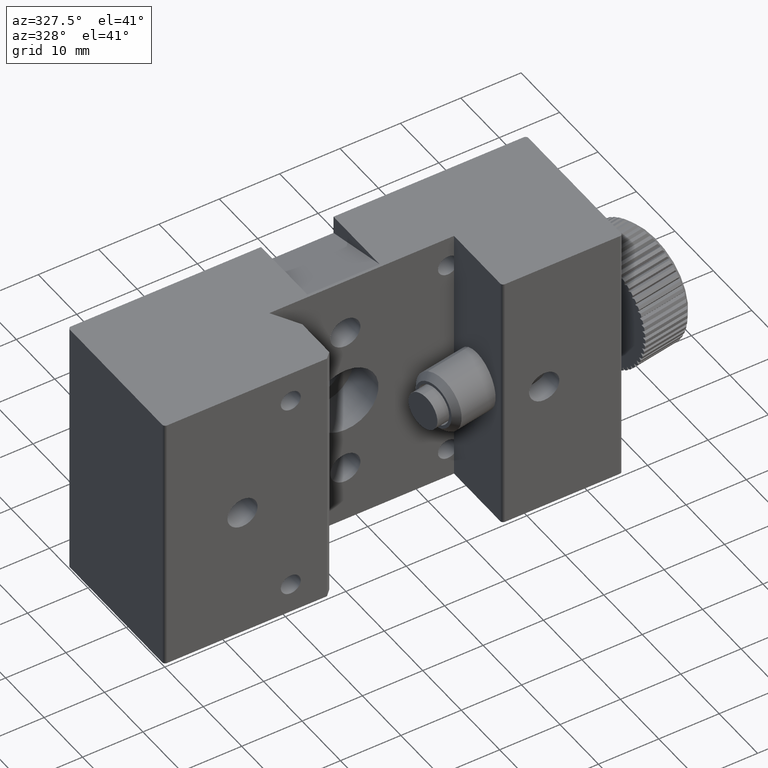
[diagram: clean part render]
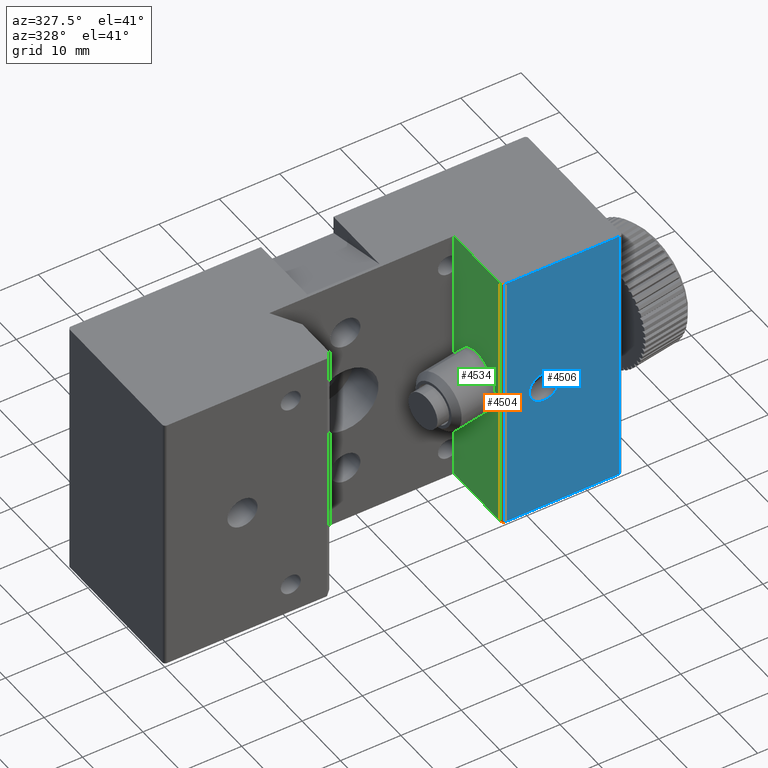
[diagram: same view with three faces highlighted in distinct colors, each labeled with its STEP entity id]
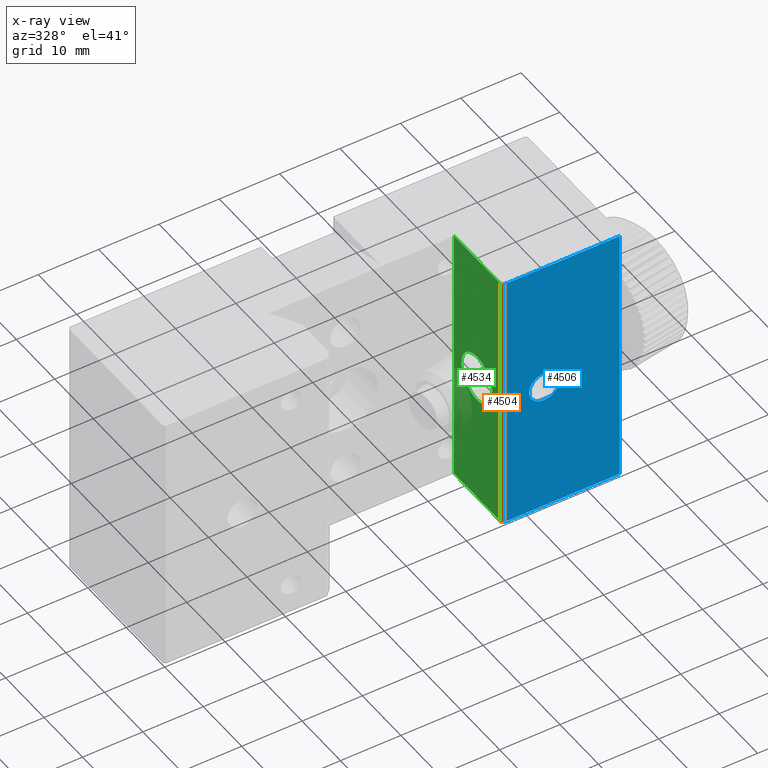
[diagram: x-ray of the same camera — body ghosted, the three highlighted faces saturated]
A machine part, auxiliary view with three faces highlighted in distinct colors.
The next image is the same camera in x-ray (body ghosted, the three faces saturated) — at least one of them is partly hidden behind the body in this view.
Their STEP definitions:

[orange] entity #4504 — the highlighted cylindrical surface (edge-blend (fillet) strip) has radius 0.5 mm, axis along (0, 0, 1).
#41 = FACE_OUTER_BOUND ( 'NONE', #4991, .T. ) ;
#45 = CYLINDRICAL_SURFACE ( 'NONE', #7096, 0.4999999999999987200 ) ;
#555 = DIRECTION ( 'NONE',  ( 0.0000000000000000000, 0.0000000000000000000, 1.000000000000000000 ) ) ;
#557 = CARTESIAN_POINT ( 'NONE',  ( -4.223264835549443300, -10.44205040425162800, -22.00000000000000000 ) ) ;
#558 = DIRECTION ( 'NONE',  ( 0.0000000000000000000, 0.0000000000000000000, 1.000000000000000000 ) ) ;
#559 = DIRECTION ( 'NONE',  ( 1.000000000000000000, 0.0000000000000000000, 0.0000000000000000000 ) ) ;
#1449 = EDGE_CURVE ( 'NONE', #5059, #5122, #1967, .T. ) ;
#1460 = EDGE_CURVE ( 'NONE', #5119, #5059, #1985, .T. ) ;
#1463 = EDGE_CURVE ( 'NONE', #5060, #5122, #1981, .T. ) ;
#1465 = EDGE_CURVE ( 'NONE', #5119, #5060, #1993, .T. ) ;
#1493 = CARTESIAN_POINT ( 'NONE',  ( -4.223264835549443300, -10.44205040425162800, 22.00000000000000000 ) ) ;
#1494 = DIRECTION ( 'NONE',  ( 0.0000000000000000000, 0.0000000000000000000, 1.000000000000000000 ) ) ;
#1495 = DIRECTION ( 'NONE',  ( 1.000000000000000000, 0.0000000000000000000, 0.0000000000000000000 ) ) ;
#1516 = CARTESIAN_POINT ( 'NONE',  ( -4.723264835549439800, -10.44205040425162800, -22.00000000000000000 ) ) ;
#1517 = DIRECTION ( 'NONE',  ( 0.0000000000000000000, 0.0000000000000000000, 1.000000000000000000 ) ) ;
#1518 = CARTESIAN_POINT ( 'NONE',  ( -4.223264835549443300, -10.94205040425162800, -22.00000000000000000 ) ) ;
#1967 = CIRCLE ( 'NONE', #3378, 0.4999999999999987200 ) ;
#1981 = LINE ( 'NONE', #1518, #1991 ) ;
#1985 = LINE ( 'NONE', #1516, #1988 ) ;
#1988 = VECTOR ( 'NONE', #1517, 1000.000000000000000 ) ;
#1991 = VECTOR ( 'NONE', #555, 1000.000000000000000 ) ;
#1993 = CIRCLE ( 'NONE', #3382, 0.4999999999999987200 ) ;
#2957 = CARTESIAN_POINT ( 'NONE',  ( -4.723264835549439800, -10.44205040425162800, 22.00000000000000000 ) ) ;
#2958 = CARTESIAN_POINT ( 'NONE',  ( -4.223264835549443300, -10.94205040425162800, -22.00000000000000000 ) ) ;
#2964 = CARTESIAN_POINT ( 'NONE',  ( -4.723264835549439800, -10.44205040425162800, -22.00000000000000000 ) ) ;
#2969 = CARTESIAN_POINT ( 'NONE',  ( -4.223264835549443300, -10.94205040425162800, 22.00000000000000000 ) ) ;
#3378 = AXIS2_PLACEMENT_3D ( 'NONE', #1493, #1494, #1495 ) ;
#3382 = AXIS2_PLACEMENT_3D ( 'NONE', #557, #558, #559 ) ;
#4504 = ADVANCED_FACE ( 'NONE', ( #41 ), #45, .T. ) ;
#4836 = DIRECTION ( 'NONE',  ( 1.000000000000000000, 0.0000000000000000000, 0.0000000000000000000 ) ) ;
#4843 = DIRECTION ( 'NONE',  ( 0.0000000000000000000, 0.0000000000000000000, 1.000000000000000000 ) ) ;
#4844 = CARTESIAN_POINT ( 'NONE',  ( -4.223264835549443300, -10.44205040425162800, -22.00000000000000000 ) ) ;
#4991 = EDGE_LOOP ( 'NONE', ( #5295, #5297, #5299, #5301 ) ) ;
#5059 = VERTEX_POINT ( 'NONE', #2957 ) ;
#5060 = VERTEX_POINT ( 'NONE', #2958 ) ;
#5119 = VERTEX_POINT ( 'NONE', #2964 ) ;
#5122 = VERTEX_POINT ( 'NONE', #2969 ) ;
#5295 = ORIENTED_EDGE ( 'NONE', *, *, #1449, .F. ) ;
#5297 = ORIENTED_EDGE ( 'NONE', *, *, #1460, .F. ) ;
#5299 = ORIENTED_EDGE ( 'NONE', *, *, #1465, .T. ) ;
#5301 = ORIENTED_EDGE ( 'NONE', *, *, #1463, .T. ) ;
#7096 = AXIS2_PLACEMENT_3D ( 'NONE', #4844, #4843, #4836 ) ;

[blue] entity #4506 — the highlighted planar face has unit normal (0, 1, -0).
#44 = FACE_BOUND ( 'NONE', #4984, .T. ) ;
#49 = FACE_OUTER_BOUND ( 'NONE', #4980, .T. ) ;
#555 = DIRECTION ( 'NONE',  ( 0.0000000000000000000, 0.0000000000000000000, 1.000000000000000000 ) ) ;
#579 = VERTEX_POINT ( 'NONE', #1314 ) ;
#1314 = CARTESIAN_POINT ( 'NONE',  ( 14.77673516445055700, -10.94205040425163000, 22.00000000000000000 ) ) ;
#1457 = EDGE_CURVE ( 'NONE', #5057, #579, #1980, .T. ) ;
#1458 = EDGE_CURVE ( 'NONE', #5057, #5060, #1978, .T. ) ;
#1459 = EDGE_CURVE ( 'NONE', #579, #5122, #1983, .T. ) ;
#1461 = EDGE_CURVE ( 'NONE', #4308, #4308, #1987, .T. ) ;
#1463 = EDGE_CURVE ( 'NONE', #5060, #5122, #1981, .T. ) ;
#1504 = DIRECTION ( 'NONE',  ( 0.0000000000000000000, 0.0000000000000000000, 1.000000000000000000 ) ) ;
#1508 = CARTESIAN_POINT ( 'NONE',  ( 14.77673516445055700, -10.94205040425163000, -22.00000000000000000 ) ) ;
#1509 = CARTESIAN_POINT ( 'NONE',  ( 14.77673516445055700, -10.94205040425163000, -22.00000000000000000 ) ) ;
#1513 = DIRECTION ( 'NONE',  ( -1.000000000000000000, 0.0000000000000000000, 0.0000000000000000000 ) ) ;
#1514 = CARTESIAN_POINT ( 'NONE',  ( 14.77673516445055700, -10.94205040425163000, 22.00000000000000000 ) ) ;
#1515 = DIRECTION ( 'NONE',  ( -1.000000000000000000, 0.0000000000000000000, 0.0000000000000000000 ) ) ;
#1518 = CARTESIAN_POINT ( 'NONE',  ( -4.223264835549443300, -10.94205040425162800, -22.00000000000000000 ) ) ;
#1520 = CARTESIAN_POINT ( 'NONE',  ( 2.276735164450559300, -10.94205040425163100, 0.0000000000000000000 ) ) ;
#1521 = DIRECTION ( 'NONE',  ( -0.0000000000000000000, 1.000000000000000000, -0.0000000000000000000 ) ) ;
#1522 = DIRECTION ( 'NONE',  ( 0.0000000000000000000, 0.0000000000000000000, 1.000000000000000000 ) ) ;
#1978 = LINE ( 'NONE', #1509, #1984 ) ;
#1980 = LINE ( 'NONE', #1508, #1982 ) ;
#1981 = LINE ( 'NONE', #1518, #1991 ) ;
#1982 = VECTOR ( 'NONE', #1504, 1000.000000000000000 ) ;
#1983 = LINE ( 'NONE', #1514, #1986 ) ;
#1984 = VECTOR ( 'NONE', #1513, 1000.000000000000000 ) ;
#1986 = VECTOR ( 'NONE', #1515, 1000.000000000000000 ) ;
#1987 = CIRCLE ( 'NONE', #3381, 2.499999999999995100 ) ;
#1991 = VECTOR ( 'NONE', #555, 1000.000000000000000 ) ;
#2955 = CARTESIAN_POINT ( 'NONE',  ( 14.77673516445055700, -10.94205040425163000, -22.00000000000000000 ) ) ;
#2958 = CARTESIAN_POINT ( 'NONE',  ( -4.223264835549443300, -10.94205040425162800, -22.00000000000000000 ) ) ;
#2969 = CARTESIAN_POINT ( 'NONE',  ( -4.223264835549443300, -10.94205040425162800, 22.00000000000000000 ) ) ;
#3381 = AXIS2_PLACEMENT_3D ( 'NONE', #1520, #1521, #1522 ) ;
#4308 = VERTEX_POINT ( 'NONE', #5354 ) ;
#4506 = ADVANCED_FACE ( 'NONE', ( #44, #49 ), #4849, .F. ) ;
#4847 = CARTESIAN_POINT ( 'NONE',  ( 14.77673516445055700, -10.94205040425163000, -22.00000000000000000 ) ) ;
#4849 = PLANE ( 'NONE',  #7098 ) ;
#4851 = DIRECTION ( 'NONE',  ( 0.0000000000000000000, 1.000000000000000000, -0.0000000000000000000 ) ) ;
#4852 = DIRECTION ( 'NONE',  ( 0.0000000000000000000, 0.0000000000000000000, 1.000000000000000000 ) ) ;
#4980 = EDGE_LOOP ( 'NONE', ( #5307, #5278, #5277, #5276 ) ) ;
#4984 = EDGE_LOOP ( 'NONE', ( #5308 ) ) ;
#5057 = VERTEX_POINT ( 'NONE', #2955 ) ;
#5060 = VERTEX_POINT ( 'NONE', #2958 ) ;
#5122 = VERTEX_POINT ( 'NONE', #2969 ) ;
#5276 = ORIENTED_EDGE ( 'NONE', *, *, #1457, .T. ) ;
#5277 = ORIENTED_EDGE ( 'NONE', *, *, #1458, .F. ) ;
#5278 = ORIENTED_EDGE ( 'NONE', *, *, #1463, .F. ) ;
#5307 = ORIENTED_EDGE ( 'NONE', *, *, #1459, .T. ) ;
#5308 = ORIENTED_EDGE ( 'NONE', *, *, #1461, .T. ) ;
#5354 = CARTESIAN_POINT ( 'NONE',  ( 2.276735164450559300, -10.94205040425163100, 2.499999999999995100 ) ) ;
#7098 = AXIS2_PLACEMENT_3D ( 'NONE', #4847, #4851, #4852 ) ;

[green] entity #4534 — the highlighted planar face has unit normal (1, 0, 0).
#81 = FACE_BOUND ( 'NONE', #4977, .T. ) ;
#88 = FACE_OUTER_BOUND ( 'NONE', #4976, .T. ) ;
#458 = CARTESIAN_POINT ( 'NONE',  ( -4.723264835549439800, -0.4180384341784961200, 7.937499999999987600 ) ) ;
#463 = CARTESIAN_POINT ( 'NONE',  ( -4.723264835549439800, 1.557949595748372000, -22.00000000000000000 ) ) ;
#466 = CARTESIAN_POINT ( 'NONE',  ( -4.723264835549439800, 1.557949595748372000, -22.00000000000000000 ) ) ;
#467 = CARTESIAN_POINT ( 'NONE',  ( -4.723264835549439800, -0.4180384341784960100, 0.0000000000000000000 ) ) ;
#468 = CARTESIAN_POINT ( 'NONE',  ( -4.723264835549439800, -8.477987166021588200, 7.937499999999987600 ) ) ;
#469 = CARTESIAN_POINT ( 'NONE',  ( -4.723264835549439800, -8.477987166021590000, 4.860316984116052200E-016 ) ) ;
#470 = CARTESIAN_POINT ( 'NONE',  ( -4.723264835549439800, -8.477987166021591700, -7.937499999999987600 ) ) ;
#471 = CARTESIAN_POINT ( 'NONE',  ( -4.723264835549439800, -0.4180384341784961200, -7.937499999999987600 ) ) ;
#472 = CARTESIAN_POINT ( 'NONE',  ( -4.723264835549439800, -0.4180384341784960100, 0.0000000000000000000 ) ) ;
#473 = DIRECTION ( 'NONE',  ( 0.0000000000000000000, 0.0000000000000000000, 1.000000000000000000 ) ) ;
#474 = DIRECTION ( 'NONE',  ( 0.0000000000000000000, 0.0000000000000000000, 1.000000000000000000 ) ) ;
#475 = CARTESIAN_POINT ( 'NONE',  ( -4.723264835549439800, 1.557949595748372000, -22.00000000000000000 ) ) ;
#476 = DIRECTION ( 'NONE',  ( 0.0000000000000000000, 0.0000000000000000000, 1.000000000000000000 ) ) ;
#477 = CARTESIAN_POINT ( 'NONE',  ( -4.723264835549439800, 1.557949595748372000, -22.00000000000000000 ) ) ;
#478 = DIRECTION ( 'NONE',  ( 0.0000000000000000000, 0.0000000000000000000, 1.000000000000000000 ) ) ;
#479 = CARTESIAN_POINT ( 'NONE',  ( -4.723264835549439800, 1.557949595748372000, -22.00000000000000000 ) ) ;
#480 = DIRECTION ( 'NONE',  ( 0.0000000000000000000, 0.0000000000000000000, 1.000000000000000000 ) ) ;
#1052 = ORIENTED_EDGE ( 'NONE', *, *, #1373, .T. ) ;
#1053 = ORIENTED_EDGE ( 'NONE', *, *, #1439, .T. ) ;
#1054 = ORIENTED_EDGE ( 'NONE', *, *, #1374, .F. ) ;
#1055 = ORIENTED_EDGE ( 'NONE', *, *, #1375, .F. ) ;
#1056 = ORIENTED_EDGE ( 'NONE', *, *, #1376, .F. ) ;
#1057 = ORIENTED_EDGE ( 'NONE', *, *, #1377, .F. ) ;
#1058 = ORIENTED_EDGE ( 'NONE', *, *, #1378, .F. ) ;
#1059 = ORIENTED_EDGE ( 'NONE', *, *, #1442, .F. ) ;
#1060 = ORIENTED_EDGE ( 'NONE', *, *, #1460, .T. ) ;
#1373 = EDGE_CURVE ( 'NONE', #4282, #4282, #2190, .T. ) ;
#1374 = EDGE_CURVE ( 'NONE', #5050, #5041, #2546, .T. ) ;
#1375 = EDGE_CURVE ( 'NONE', #5044, #5050, #2548, .T. ) ;
#1376 = EDGE_CURVE ( 'NONE', #5395, #5044, #2543, .T. ) ;
#1377 = EDGE_CURVE ( 'NONE', #5393, #5395, #2550, .T. ) ;
#1378 = EDGE_CURVE ( 'NONE', #5052, #5393, #2552, .T. ) ;
#1439 = EDGE_CURVE ( 'NONE', #5059, #5041, #1950, .T. ) ;
#1442 = EDGE_CURVE ( 'NONE', #5119, #5052, #1954, .T. ) ;
#1460 = EDGE_CURVE ( 'NONE', #5119, #5059, #1985, .T. ) ;
#1516 = CARTESIAN_POINT ( 'NONE',  ( -4.723264835549439800, -10.44205040425162800, -22.00000000000000000 ) ) ;
#1517 = DIRECTION ( 'NONE',  ( 0.0000000000000000000, 0.0000000000000000000, 1.000000000000000000 ) ) ;
#1577 = CARTESIAN_POINT ( 'NONE',  ( -4.723264835549439800, -10.44205040425162800, -22.00000000000000000 ) ) ;
#1582 = CARTESIAN_POINT ( 'NONE',  ( -4.723264835549439800, -10.44205040425162800, 22.00000000000000000 ) ) ;
#1583 = DIRECTION ( 'NONE',  ( 0.0000000000000000000, 1.000000000000000000, 0.0000000000000000000 ) ) ;
#1587 = DIRECTION ( 'NONE',  ( 0.0000000000000000000, 1.000000000000000000, 0.0000000000000000000 ) ) ;
#1950 = LINE ( 'NONE', #1582, #1953 ) ;
#1953 = VECTOR ( 'NONE', #1583, 1000.000000000000000 ) ;
#1954 = LINE ( 'NONE', #1577, #1959 ) ;
#1959 = VECTOR ( 'NONE', #1587, 1000.000000000000000 ) ;
#1985 = LINE ( 'NONE', #1516, #1988 ) ;
#1988 = VECTOR ( 'NONE', #1517, 1000.000000000000000 ) ;
#2190 =( BOUNDED_CURVE ( )  B_SPLINE_CURVE ( 3, ( #467, #458, #468, #469, #470, #471, #472 ),
 .UNSPECIFIED., .T., .T. ) 
 B_SPLINE_CURVE_WITH_KNOTS ( ( 4, 3, 4 ),
 ( 0.0000000000000000000, 3.141592653589793100, 6.283185307179586200 ),
 .UNSPECIFIED. ) 
 CURVE ( )  GEOMETRIC_REPRESENTATION_ITEM ( )  RATIONAL_B_SPLINE_CURVE ( ( 1.000000000000000000, 0.3333333333333333700, 0.3333333333333333700, 1.000000000000000000, 0.3333333333333333700, 0.3333333333333333700, 1.000000000000000000 ) ) 
 REPRESENTATION_ITEM ( '' )  );
#2543 = LINE ( 'NONE', #466, #2551 ) ;
#2545 = VECTOR ( 'NONE', #474, 1000.000000000000000 ) ;
#2546 = LINE ( 'NONE', #463, #2545 ) ;
#2547 = VECTOR ( 'NONE', #473, 1000.000000000000000 ) ;
#2548 = LINE ( 'NONE', #475, #2547 ) ;
#2550 = LINE ( 'NONE', #477, #2553 ) ;
#2551 = VECTOR ( 'NONE', #476, 1000.000000000000000 ) ;
#2552 = LINE ( 'NONE', #479, #2555 ) ;
#2553 = VECTOR ( 'NONE', #478, 1000.000000000000000 ) ;
#2555 = VECTOR ( 'NONE', #480, 1000.000000000000000 ) ;
#2602 = CARTESIAN_POINT ( 'NONE',  ( -4.723264835549439800, -10.44205040425162800, -22.00000000000000000 ) ) ;
#2603 = PLANE ( 'NONE',  #7126 ) ;
#2608 = DIRECTION ( 'NONE',  ( 1.000000000000000000, 0.0000000000000000000, 0.0000000000000000000 ) ) ;
#2609 = DIRECTION ( 'NONE',  ( 0.0000000000000000000, 0.0000000000000000000, -1.000000000000000000 ) ) ;
#2824 = CARTESIAN_POINT ( 'NONE',  ( -4.723264835549439800, 1.557949595748372000, 15.68755952515933000 ) ) ;
#2948 = CARTESIAN_POINT ( 'NONE',  ( -4.723264835549439800, 1.557949595748372000, 18.31244047484066000 ) ) ;
#2950 = CARTESIAN_POINT ( 'NONE',  ( -4.723264835549439800, 1.557949595748372000, -22.00000000000000000 ) ) ;
#2957 = CARTESIAN_POINT ( 'NONE',  ( -4.723264835549439800, -10.44205040425162800, 22.00000000000000000 ) ) ;
#2964 = CARTESIAN_POINT ( 'NONE',  ( -4.723264835549439800, -10.44205040425162800, -22.00000000000000000 ) ) ;
#2975 = CARTESIAN_POINT ( 'NONE',  ( -4.723264835549439800, 1.557949595748372000, -18.31244047484067400 ) ) ;
#2976 = CARTESIAN_POINT ( 'NONE',  ( -4.723264835549439800, 1.557949595748372000, -15.68755952515934400 ) ) ;
#4282 = VERTEX_POINT ( 'NONE', #5336 ) ;
#4534 = ADVANCED_FACE ( 'NONE', ( #81, #88 ), #2603, .F. ) ;
#4976 = EDGE_LOOP ( 'NONE', ( #1053, #1054, #1055, #1056, #1057, #1058, #1059, #1060 ) ) ;
#4977 = EDGE_LOOP ( 'NONE', ( #1052 ) ) ;
#5041 = VERTEX_POINT ( 'NONE', #6574 ) ;
#5044 = VERTEX_POINT ( 'NONE', #2824 ) ;
#5050 = VERTEX_POINT ( 'NONE', #2948 ) ;
#5052 = VERTEX_POINT ( 'NONE', #2950 ) ;
#5059 = VERTEX_POINT ( 'NONE', #2957 ) ;
#5119 = VERTEX_POINT ( 'NONE', #2964 ) ;
#5336 = CARTESIAN_POINT ( 'NONE',  ( -4.723264835549439800, -0.4180384341784960100, 0.0000000000000000000 ) ) ;
#5393 = VERTEX_POINT ( 'NONE', #2975 ) ;
#5395 = VERTEX_POINT ( 'NONE', #2976 ) ;
#6574 = CARTESIAN_POINT ( 'NONE',  ( -4.723264835549439800, 1.557949595748372000, 22.00000000000000000 ) ) ;
#7126 = AXIS2_PLACEMENT_3D ( 'NONE', #2602, #2608, #2609 ) ;